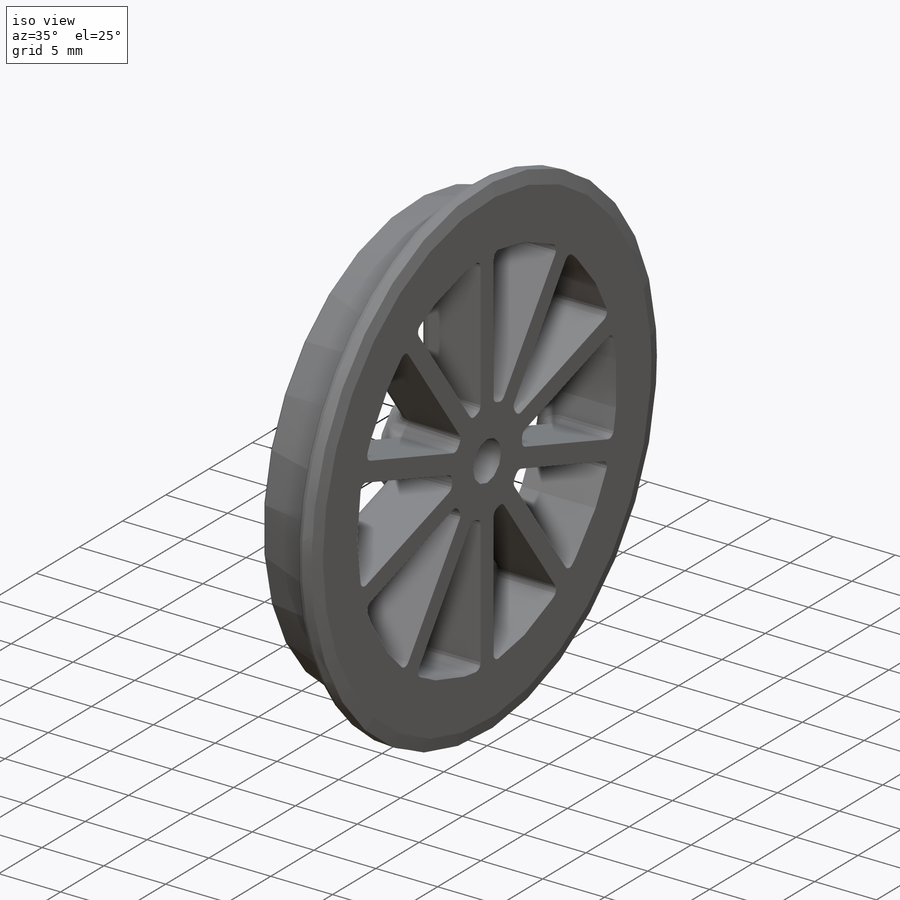
[diagram: iso view]
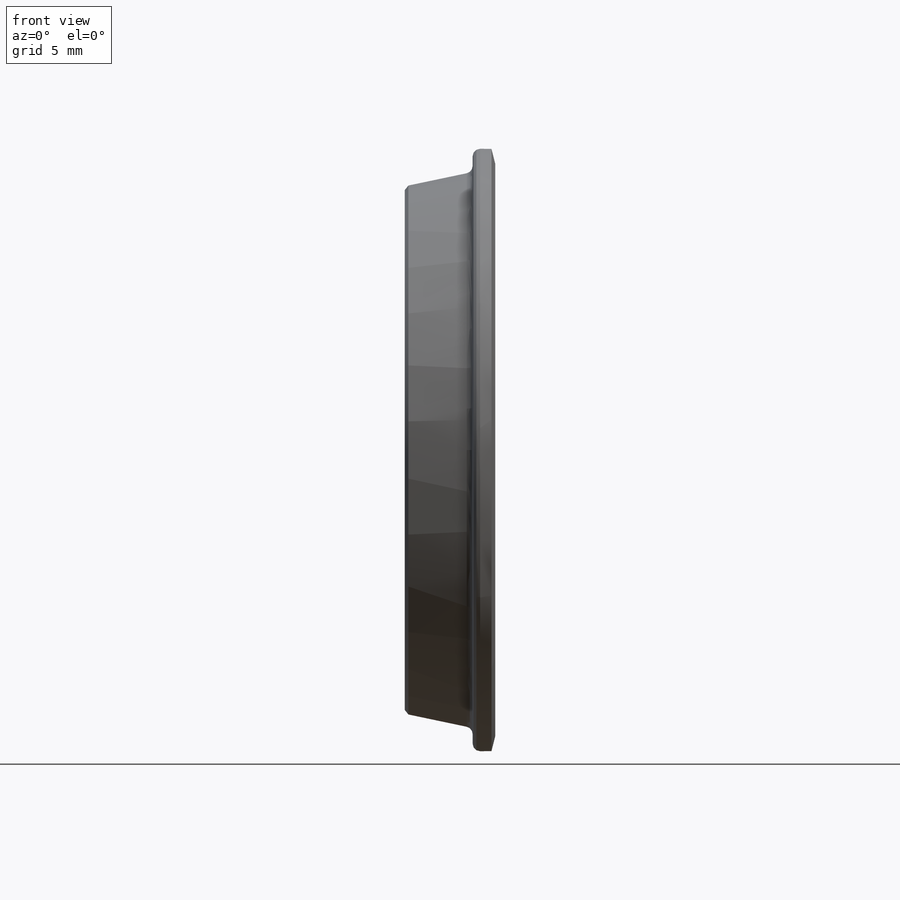
[diagram: front view]
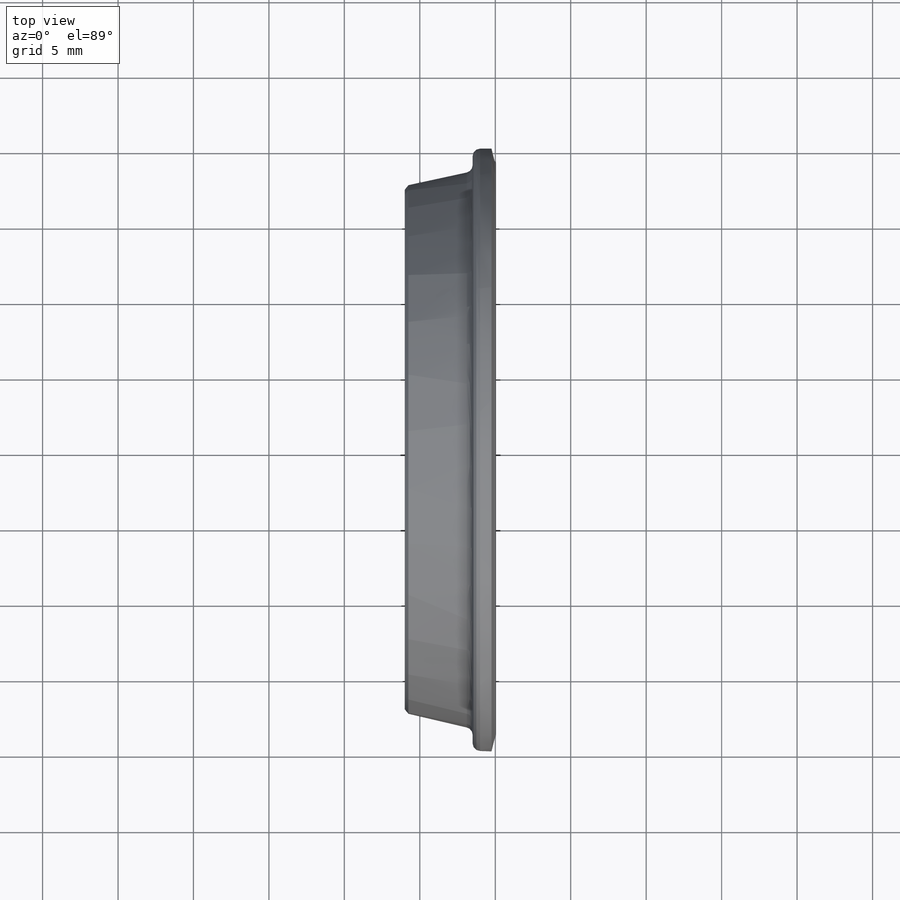
[diagram: top view]
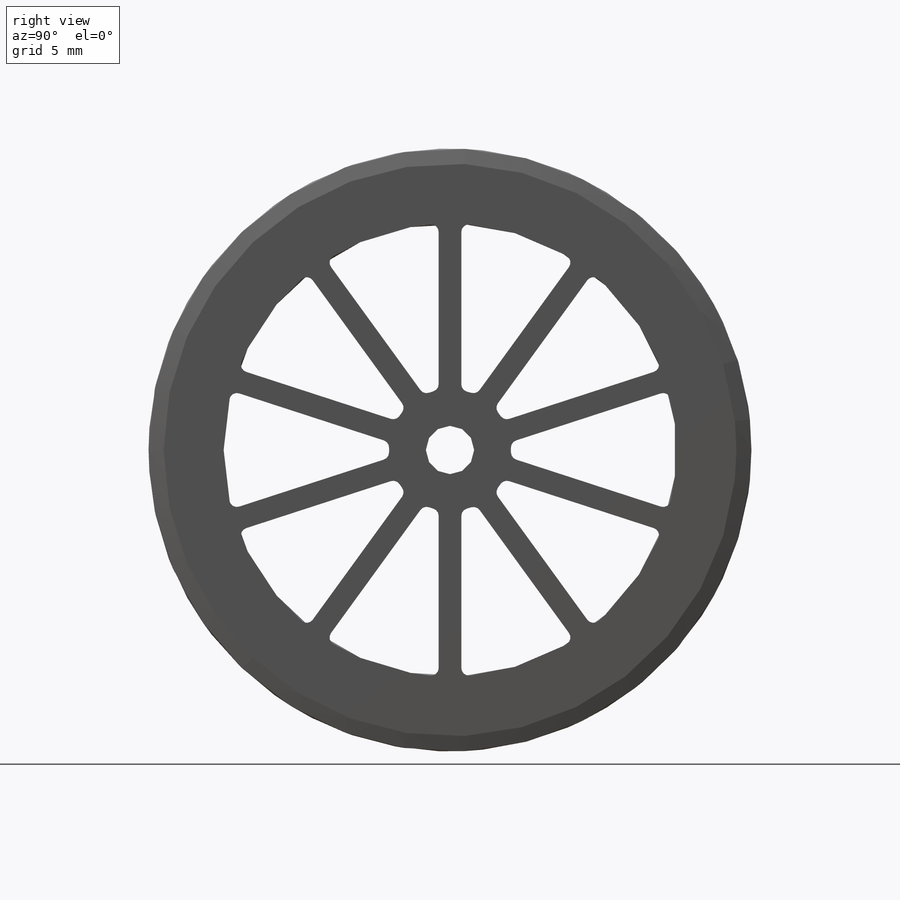
[diagram: right view]
SOLIDWORKS PART (.sldprt)
format: sldprt  version: not decoded by parser v0  size: 745,984 bytes
history: native  units: mm
features: sketch x4, cut_extrude x3, fillet x2, material x1, revolve x1 (+14 scaffold rows collapsed)
feature tree (25):
  scaffold x14  (default folders/planes/origin — collapsed)
  material  "Material <not specified>"
  sketch  "Sketch1"  dims[c1.D5=0.5mm c1.D1=35.0mm c1.D2=6.0mm c1.D3=1.5mm c1.D4=1.5mm c1.D6=1.0mm c1.D7=0.25mm c1.D10=0.25mm c1.D8=~3.951564mm c2.D8=~102.242109deg]
  revolve  "Revolve1"  Angle=360deg
  sketch  "Sketch2"  dims[D1=8.0mm D2=30.0mm]
  cut_extrude  "Extrude1"  Depth=1mm
  sketch  "Sketch3"  dims[c1.D2=0.5mm c1.D3=0.5mm c1.D4=0.5mm c1.D5=0.5mm c1.D7=0.5mm c2.D3=0.5mm c2.D4=0.5mm c2.D2=0.5mm c2.D5=0.5mm c2.D1=1.5mm c2.D6=10.0mm]
  cut_extrude  "Extrude2"  [1 undecoded]
  sketch  "Sketch4"  dims[D1=3.2mm]
  cut_extrude  "Extrude3"  [1 undecoded]
  fillet  "Fillet27"  Radius=0.75mm
  fillet  "Fillet28"  Radius=0.75mm
decode coverage: 8 of 10 modeling features carry decoded parameters
note: ~ marks probable driven/reference dimensions
note: 2 parameter values undecoded
note: suppression state not decoded; provenance and decode notes live in map.json
